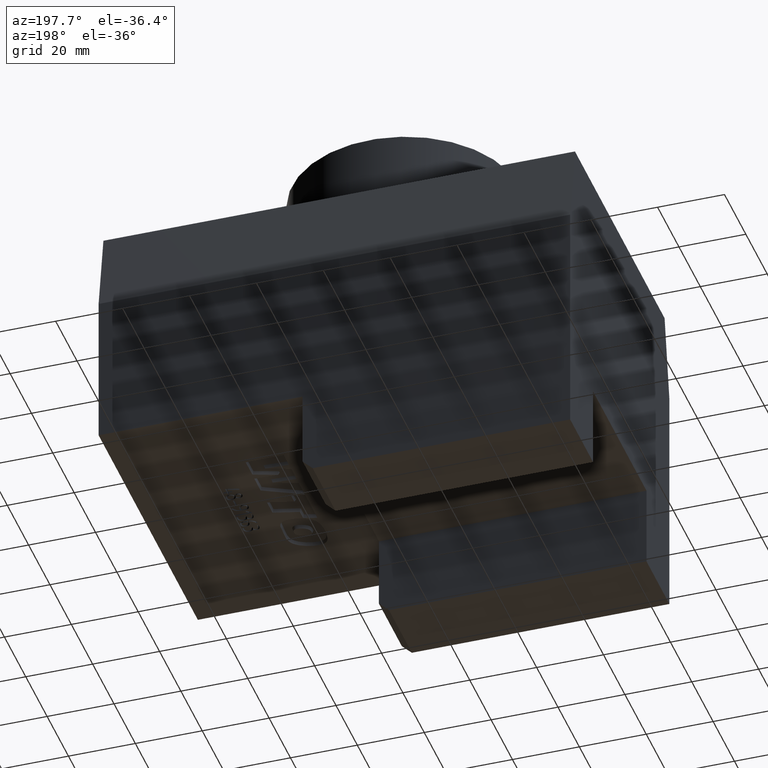
[diagram: clean part render]
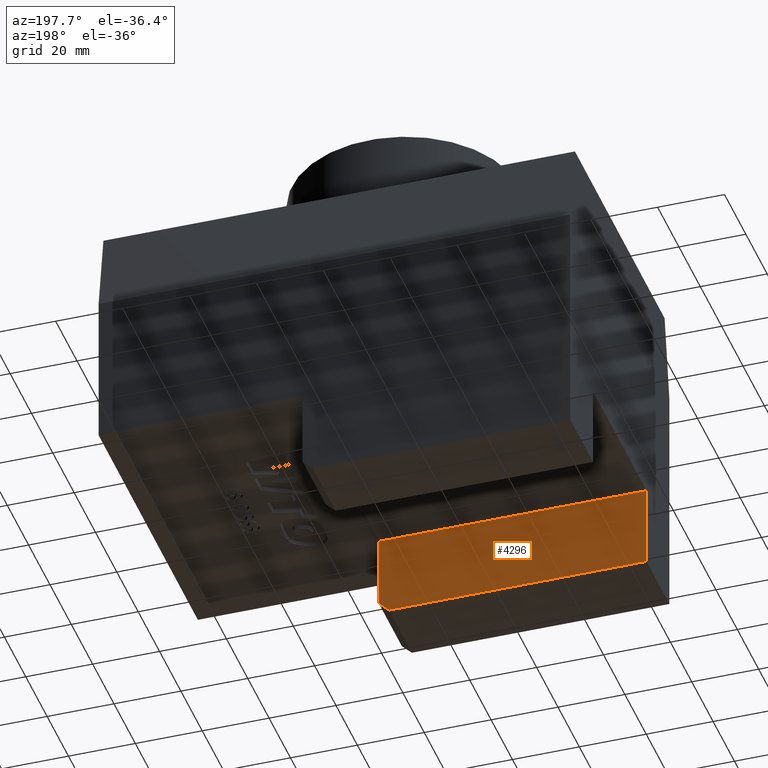
[diagram: same view with one face highlighted and labeled with its STEP entity id]
A machine part, auxiliary view. The second image highlights one B-rep face of the part: STEP entity #4296.
In plain terms, the highlighted planar face has unit normal (0, -1, 0).
Its self-contained STEP definition (entity closure, byte-faithful):
#2777 = PLANE('',#2778);
#2778 = AXIS2_PLACEMENT_3D('',#2779,#2780,#2781);
#2779 = CARTESIAN_POINT('',(16.,-86.27928892228,-72.));
#2780 = DIRECTION('',(1.,0.E+000,0.E+000));
#2781 = DIRECTION('',(0.E+000,0.E+000,1.));
#4296 = ADVANCED_FACE('',(#4297),#4311,.F.);
#4297 = FACE_BOUND('',#4298,.T.);
#4298 = EDGE_LOOP('',(#4299,#4329,#4357,#4385,#4413));
#4299 = ORIENTED_EDGE('',*,*,#4300,.F.);
#4300 = EDGE_CURVE('',#4301,#4303,#4305,.T.);
#4301 = VERTEX_POINT('',#4302);
#4302 = CARTESIAN_POINT('',(16.,-25.,-95.));
#4303 = VERTEX_POINT('',#4304);
#4304 = CARTESIAN_POINT('',(16.,-25.,-73.));
#4305 = SURFACE_CURVE('',#4306,(#4310,#4322),.PCURVE_S1.);
#4306 = LINE('',#4307,#4308);
#4307 = CARTESIAN_POINT('',(16.,-25.,-73.));
#4308 = VECTOR('',#4309,1.);
#4309 = DIRECTION('',(0.E+000,0.E+000,1.));
#4310 = PCURVE('',#4311,#4316);
#4311 = PLANE('',#4312);
#4312 = AXIS2_PLACEMENT_3D('',#4313,#4314,#4315);
#4313 = CARTESIAN_POINT('',(-64.,-25.,-73.));
#4314 = DIRECTION('',(0.E+000,-1.,0.E+000));
#4315 = DIRECTION('',(1.,0.E+000,0.E+000));
#4316 = DEFINITIONAL_REPRESENTATION('',(#4317),#4321);
#4317 = LINE('',#4318,#4319);
#4318 = CARTESIAN_POINT('',(80.,0.E+000));
#4319 = VECTOR('',#4320,1.);
#4320 = DIRECTION('',(0.E+000,1.));
#4321 = ( GEOMETRIC_REPRESENTATION_CONTEXT(2) 
PARAMETRIC_REPRESENTATION_CONTEXT() REPRESENTATION_CONTEXT('2D SPACE',''
  ) );
#4322 = PCURVE('',#2777,#4323);
#4323 = DEFINITIONAL_REPRESENTATION('',(#4324),#4328);
#4324 = LINE('',#4325,#4326);
#4325 = CARTESIAN_POINT('',(-1.,-61.27928892228));
#4326 = VECTOR('',#4327,1.);
#4327 = DIRECTION('',(1.,0.E+000));
#4328 = ( GEOMETRIC_REPRESENTATION_CONTEXT(2) 
PARAMETRIC_REPRESENTATION_CONTEXT() REPRESENTATION_CONTEXT('2D SPACE',''
  ) );
#4329 = ORIENTED_EDGE('',*,*,#4330,.F.);
#4330 = EDGE_CURVE('',#4331,#4301,#4333,.T.);
#4331 = VERTEX_POINT('',#4332);
#4332 = CARTESIAN_POINT('',(13.,-25.,-98.));
#4333 = SURFACE_CURVE('',#4334,(#4338,#4345),.PCURVE_S1.);
#4334 = LINE('',#4335,#4336);
#4335 = CARTESIAN_POINT('',(-13.,-25.,-124.));
#4336 = VECTOR('',#4337,1.);
#4337 = DIRECTION('',(0.707106781187,0.E+000,0.707106781187));
#4338 = PCURVE('',#4311,#4339);
#4339 = DEFINITIONAL_REPRESENTATION('',(#4340),#4344);
#4340 = LINE('',#4341,#4342);
#4341 = CARTESIAN_POINT('',(51.,-51.));
#4342 = VECTOR('',#4343,1.);
#4343 = DIRECTION('',(0.707106781187,0.707106781187));
#4344 = ( GEOMETRIC_REPRESENTATION_CONTEXT(2) 
PARAMETRIC_REPRESENTATION_CONTEXT() REPRESENTATION_CONTEXT('2D SPACE',''
  ) );
#4345 = PCURVE('',#4346,#4351);
#4346 = PLANE('',#4347);
#4347 = AXIS2_PLACEMENT_3D('',#4348,#4349,#4350);
#4348 = CARTESIAN_POINT('',(16.,-86.27928892228,-95.));
#4349 = DIRECTION('',(0.707106781187,0.E+000,-0.707106781187));
#4350 = DIRECTION('',(0.707106781187,0.E+000,0.707106781187));
#4351 = DEFINITIONAL_REPRESENTATION('',(#4352),#4356);
#4352 = LINE('',#4353,#4354);
#4353 = CARTESIAN_POINT('',(-41.01219330882,-61.27928892228));
#4354 = VECTOR('',#4355,1.);
#4355 = DIRECTION('',(1.,0.E+000));
#4356 = ( GEOMETRIC_REPRESENTATION_CONTEXT(2) 
PARAMETRIC_REPRESENTATION_CONTEXT() REPRESENTATION_CONTEXT('2D SPACE',''
  ) );
#4357 = ORIENTED_EDGE('',*,*,#4358,.F.);
#4358 = EDGE_CURVE('',#4359,#4331,#4361,.T.);
#4359 = VERTEX_POINT('',#4360);
#4360 = CARTESIAN_POINT('',(-64.,-25.,-98.));
#4361 = SURFACE_CURVE('',#4362,(#4366,#4373),.PCURVE_S1.);
#4362 = LINE('',#4363,#4364);
#4363 = CARTESIAN_POINT('',(-64.,-25.,-98.));
#4364 = VECTOR('',#4365,1.);
#4365 = DIRECTION('',(1.,0.E+000,0.E+000));
#4366 = PCURVE('',#4311,#4367);
#4367 = DEFINITIONAL_REPRESENTATION('',(#4368),#4372);
#4368 = LINE('',#4369,#4370);
#4369 = CARTESIAN_POINT('',(0.E+000,-25.));
#4370 = VECTOR('',#4371,1.);
#4371 = DIRECTION('',(1.,0.E+000));
#4372 = ( GEOMETRIC_REPRESENTATION_CONTEXT(2) 
PARAMETRIC_REPRESENTATION_CONTEXT() REPRESENTATION_CONTEXT('2D SPACE',''
  ) );
#4373 = PCURVE('',#4374,#4379);
#4374 = PLANE('',#4375);
#4375 = AXIS2_PLACEMENT_3D('',#4376,#4377,#4378);
#4376 = CARTESIAN_POINT('',(-64.,-25.,-98.));
#4377 = DIRECTION('',(0.E+000,0.E+000,1.));
#4378 = DIRECTION('',(-1.,0.E+000,0.E+000));
#4379 = DEFINITIONAL_REPRESENTATION('',(#4380),#4384);
#4380 = LINE('',#4381,#4382);
#4381 = CARTESIAN_POINT('',(0.E+000,0.E+000));
#4382 = VECTOR('',#4383,1.);
#4383 = DIRECTION('',(-1.,0.E+000));
#4384 = ( GEOMETRIC_REPRESENTATION_CONTEXT(2) 
PARAMETRIC_REPRESENTATION_CONTEXT() REPRESENTATION_CONTEXT('2D SPACE',''
  ) );
#4385 = ORIENTED_EDGE('',*,*,#4386,.F.);
#4386 = EDGE_CURVE('',#4387,#4359,#4389,.T.);
#4387 = VERTEX_POINT('',#4388);
#4388 = CARTESIAN_POINT('',(-64.,-25.,-73.));
#4389 = SURFACE_CURVE('',#4390,(#4394,#4401),.PCURVE_S1.);
#4390 = LINE('',#4391,#4392);
#4391 = CARTESIAN_POINT('',(-64.,-25.,-73.));
#4392 = VECTOR('',#4393,1.);
#4393 = DIRECTION('',(0.E+000,0.E+000,-1.));
#4394 = PCURVE('',#4311,#4395);
#4395 = DEFINITIONAL_REPRESENTATION('',(#4396),#4400);
#4396 = LINE('',#4397,#4398);
#4397 = CARTESIAN_POINT('',(0.E+000,0.E+000));
#4398 = VECTOR('',#4399,1.);
#4399 = DIRECTION('',(0.E+000,-1.));
#4400 = ( GEOMETRIC_REPRESENTATION_CONTEXT(2) 
PARAMETRIC_REPRESENTATION_CONTEXT() REPRESENTATION_CONTEXT('2D SPACE',''
  ) );
#4401 = PCURVE('',#4402,#4407);
#4402 = PLANE('',#4403);
#4403 = AXIS2_PLACEMENT_3D('',#4404,#4405,#4406);
#4404 = CARTESIAN_POINT('',(-64.,-25.,-98.));
#4405 = DIRECTION('',(-1.,0.E+000,0.E+000));
#4406 = DIRECTION('',(0.E+000,0.E+000,-1.));
#4407 = DEFINITIONAL_REPRESENTATION('',(#4408),#4412);
#4408 = LINE('',#4409,#4410);
#4409 = CARTESIAN_POINT('',(-25.,0.E+000));
#4410 = VECTOR('',#4411,1.);
#4411 = DIRECTION('',(1.,0.E+000));
#4412 = ( GEOMETRIC_REPRESENTATION_CONTEXT(2) 
PARAMETRIC_REPRESENTATION_CONTEXT() REPRESENTATION_CONTEXT('2D SPACE',''
  ) );
#4413 = ORIENTED_EDGE('',*,*,#4414,.T.);
#4414 = EDGE_CURVE('',#4387,#4303,#4415,.T.);
#4415 = SURFACE_CURVE('',#4416,(#4420,#4427),.PCURVE_S1.);
#4416 = LINE('',#4417,#4418);
#4417 = CARTESIAN_POINT('',(-64.,-25.,-73.));
#4418 = VECTOR('',#4419,1.);
#4419 = DIRECTION('',(1.,0.E+000,0.E+000));
#4420 = PCURVE('',#4311,#4421);
#4421 = DEFINITIONAL_REPRESENTATION('',(#4422),#4426);
#4422 = LINE('',#4423,#4424);
#4423 = CARTESIAN_POINT('',(0.E+000,0.E+000));
#4424 = VECTOR('',#4425,1.);
#4425 = DIRECTION('',(1.,0.E+000));
#4426 = ( GEOMETRIC_REPRESENTATION_CONTEXT(2) 
PARAMETRIC_REPRESENTATION_CONTEXT() REPRESENTATION_CONTEXT('2D SPACE',''
  ) );
#4427 = PCURVE('',#4428,#4433);
#4428 = PLANE('',#4429);
#4429 = AXIS2_PLACEMENT_3D('',#4430,#4431,#4432);
#4430 = CARTESIAN_POINT('',(-64.,-25.,-73.));
#4431 = DIRECTION('',(0.E+000,0.E+000,1.));
#4432 = DIRECTION('',(-1.,0.E+000,0.E+000));
#4433 = DEFINITIONAL_REPRESENTATION('',(#4434),#4438);
#4434 = LINE('',#4435,#4436);
#4435 = CARTESIAN_POINT('',(0.E+000,0.E+000));
#4436 = VECTOR('',#4437,1.);
#4437 = DIRECTION('',(-1.,0.E+000));
#4438 = ( GEOMETRIC_REPRESENTATION_CONTEXT(2) 
PARAMETRIC_REPRESENTATION_CONTEXT() REPRESENTATION_CONTEXT('2D SPACE',''
  ) );